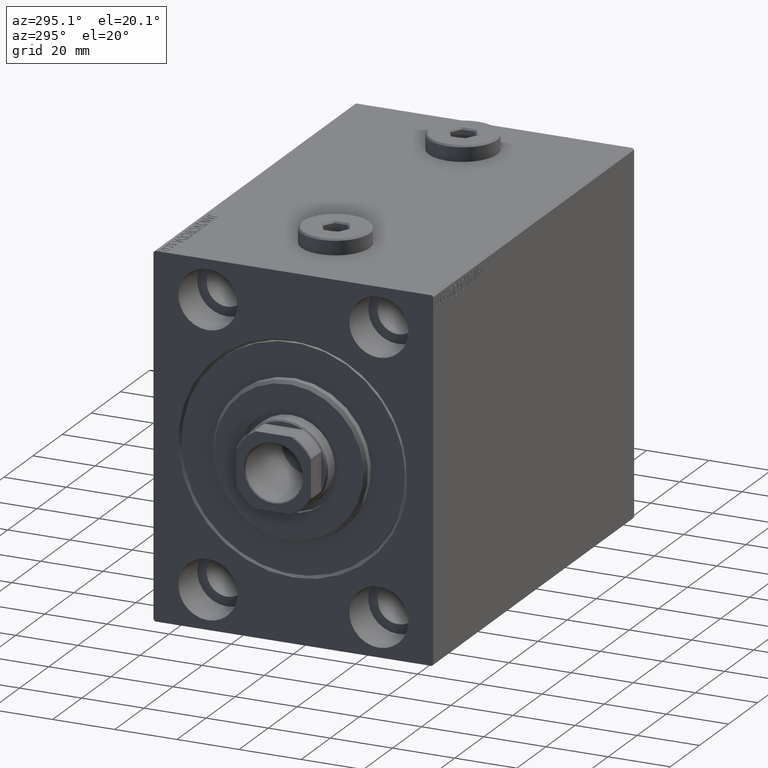
[diagram: clean part render]
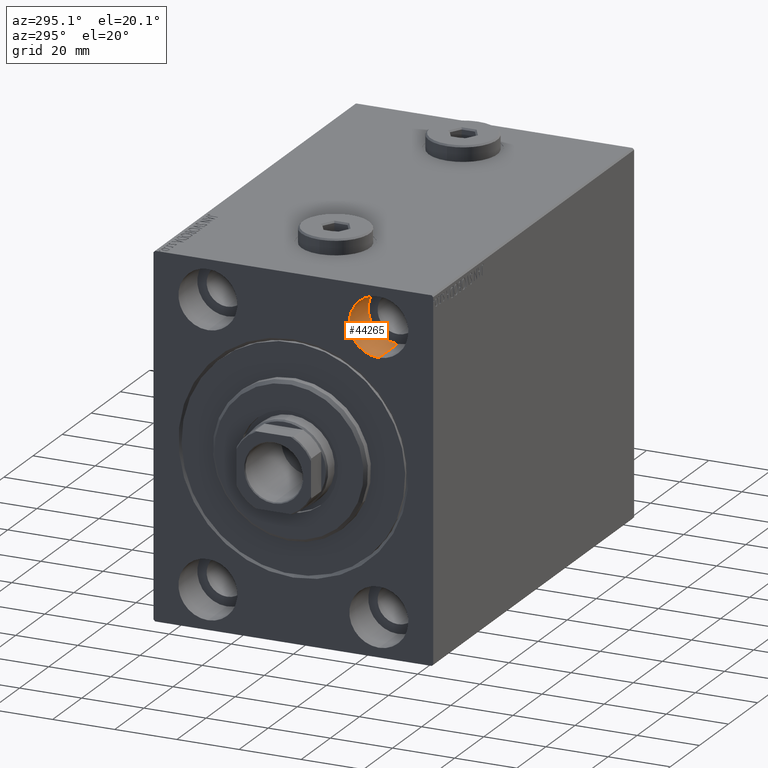
[diagram: same view with one face highlighted and labeled with its STEP entity id]
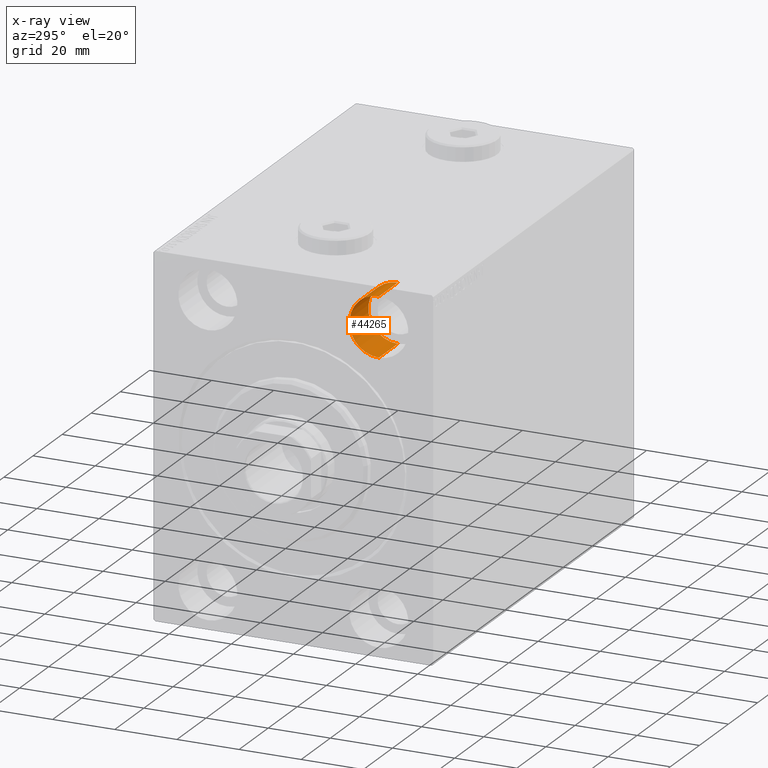
[diagram: x-ray of the same camera — body ghosted, the highlighted face saturated]
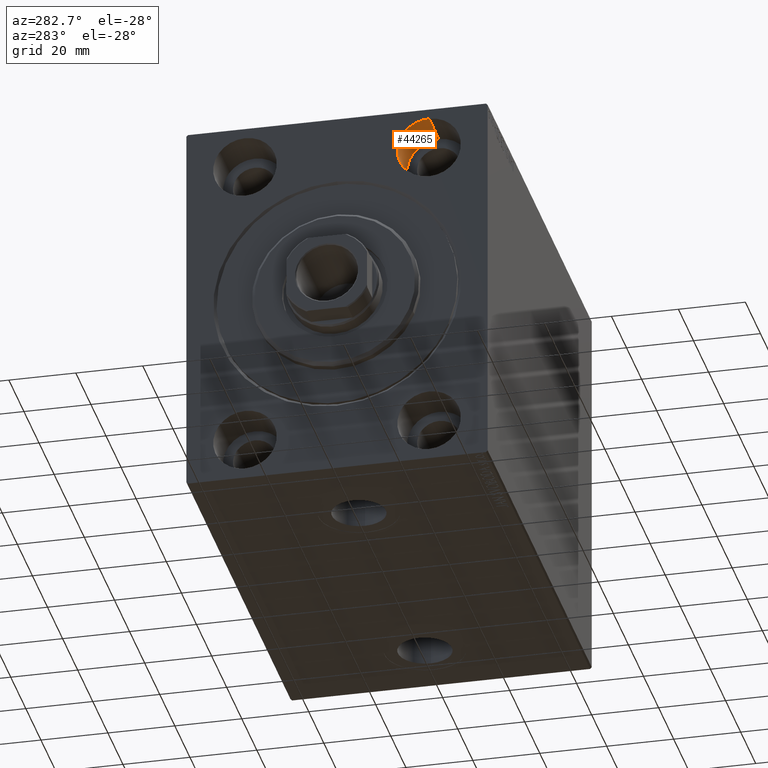
[diagram: same view with one face highlighted and labeled with its STEP entity id]
A machine part, auxiliary view. The second image highlights one B-rep face of the part: STEP entity #44265.
The next image is the same camera in x-ray: the body ghosted, the highlighted face saturated — about 0% of this face is hidden behind the body in this view.
A second angle (auxiliary view) of the same face is appended — the face is thin or edge-on in the first view.
In plain terms, the highlighted cylindrical surface (edge-blend (fillet) strip) has radius 9.5 mm, axis along (-1, -0, -0).
Its self-contained STEP definition (entity closure, byte-faithful):
#756 = DIRECTION ( 'NONE',  ( 0.000000000000000000, 0.000000000000000000, 1.000000000000000000 ) ) ;
#1880 = DIRECTION ( 'NONE',  ( -1.000000000000000000, -0.000000000000000000, -0.000000000000000000 ) ) ;
#5319 = CARTESIAN_POINT ( 'NONE',  ( 13.00000000000000000, -27.49999999999998934, 45.00000000000000711 ) ) ;
#8128 = CARTESIAN_POINT ( 'NONE',  ( 0.000000000000000000, -27.49999999999998934, 54.50000000000000711 ) ) ;
#8316 = CARTESIAN_POINT ( 'NONE',  ( 13.00000000000000000, -27.49999999999998934, 45.00000000000000711 ) ) ;
#8909 = LINE ( 'NONE', #22652, #21084 ) ;
#9210 = FACE_OUTER_BOUND ( 'NONE', #31028, .T. ) ;
#10361 = VERTEX_POINT ( 'NONE', #8128 ) ;
#11688 = DIRECTION ( 'NONE',  ( 0.000000000000000000, 0.000000000000000000, 1.000000000000000000 ) ) ;
#14739 = DIRECTION ( 'NONE',  ( -1.000000000000000000, 0.000000000000000000, 0.000000000000000000 ) ) ;
#16304 = AXIS2_PLACEMENT_3D ( 'NONE', #39408, #39191, #11688 ) ;
#16463 = DIRECTION ( 'NONE',  ( -1.000000000000000000, -0.000000000000000000, -0.000000000000000000 ) ) ;
#17168 = CARTESIAN_POINT ( 'NONE',  ( 13.00000000000000000, -27.49999999999998934, 35.50000000000000711 ) ) ;
#17779 = DIRECTION ( 'NONE',  ( -1.000000000000000000, -0.000000000000000000, -0.000000000000000000 ) ) ;
#19412 = ORIENTED_EDGE ( 'NONE', *, *, #29826, .T. ) ;
#21084 = VECTOR ( 'NONE', #16463, 1000.000000000000000 ) ;
#21159 = EDGE_CURVE ( 'NONE', #33724, #35378, #8909, .T. ) ;
#22130 = CARTESIAN_POINT ( 'NONE',  ( 13.00000000000000000, -27.49999999999998934, 54.50000000000000711 ) ) ;
#22652 = CARTESIAN_POINT ( 'NONE',  ( 13.00000000000000000, -27.49999999999998934, 35.50000000000000711 ) ) ;
#25414 = CARTESIAN_POINT ( 'NONE',  ( 0.000000000000000000, -27.49999999999998934, 35.50000000000000711 ) ) ;
#28751 = CIRCLE ( 'NONE', #16304, 9.500000000000001776 ) ;
#29214 = VERTEX_POINT ( 'NONE', #31636 ) ;
#29826 = EDGE_CURVE ( 'NONE', #29214, #10361, #35651, .T. ) ;
#29924 = ORIENTED_EDGE ( 'NONE', *, *, #21159, .F. ) ;
#31028 = EDGE_LOOP ( 'NONE', ( #29924, #39229, #19412, #39919 ) ) ;
#31636 = CARTESIAN_POINT ( 'NONE',  ( 13.00000000000000000, -27.49999999999998934, 54.50000000000000711 ) ) ;
#33702 = DIRECTION ( 'NONE',  ( 0.000000000000000000, 0.000000000000000000, 1.000000000000000000 ) ) ;
#33724 = VERTEX_POINT ( 'NONE', #17168 ) ;
#35378 = VERTEX_POINT ( 'NONE', #25414 ) ;
#35651 = LINE ( 'NONE', #22130, #43874 ) ;
#36252 = CYLINDRICAL_SURFACE ( 'NONE', #44919, 9.500000000000001776 ) ;
#37567 = AXIS2_PLACEMENT_3D ( 'NONE', #8316, #14739, #756 ) ;
#38833 = EDGE_CURVE ( 'NONE', #10361, #35378, #28751, .T. ) ;
#39191 = DIRECTION ( 'NONE',  ( -1.000000000000000000, 0.000000000000000000, 0.000000000000000000 ) ) ;
#39229 = ORIENTED_EDGE ( 'NONE', *, *, #39634, .F. ) ;
#39408 = CARTESIAN_POINT ( 'NONE',  ( 0.000000000000000000, -27.49999999999998934, 45.00000000000000711 ) ) ;
#39634 = EDGE_CURVE ( 'NONE', #29214, #33724, #41234, .T. ) ;
#39919 = ORIENTED_EDGE ( 'NONE', *, *, #38833, .T. ) ;
#41234 = CIRCLE ( 'NONE', #37567, 9.500000000000001776 ) ;
#43874 = VECTOR ( 'NONE', #17779, 1000.000000000000000 ) ;
#44265 = ADVANCED_FACE ( 'NONE', ( #9210 ), #36252, .F. ) ;
#44919 = AXIS2_PLACEMENT_3D ( 'NONE', #5319, #1880, #33702 ) ;